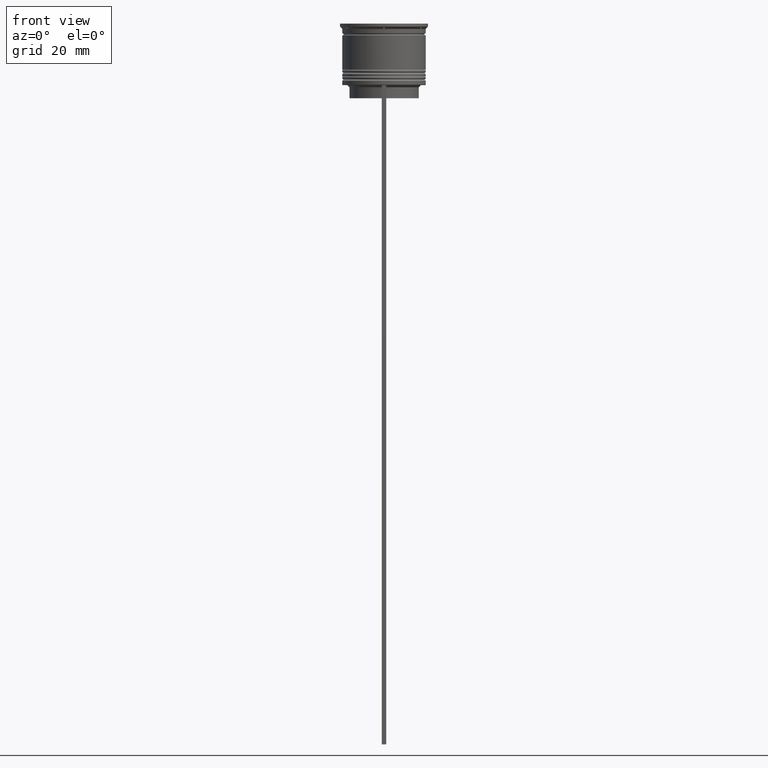
[diagram: clean part render]
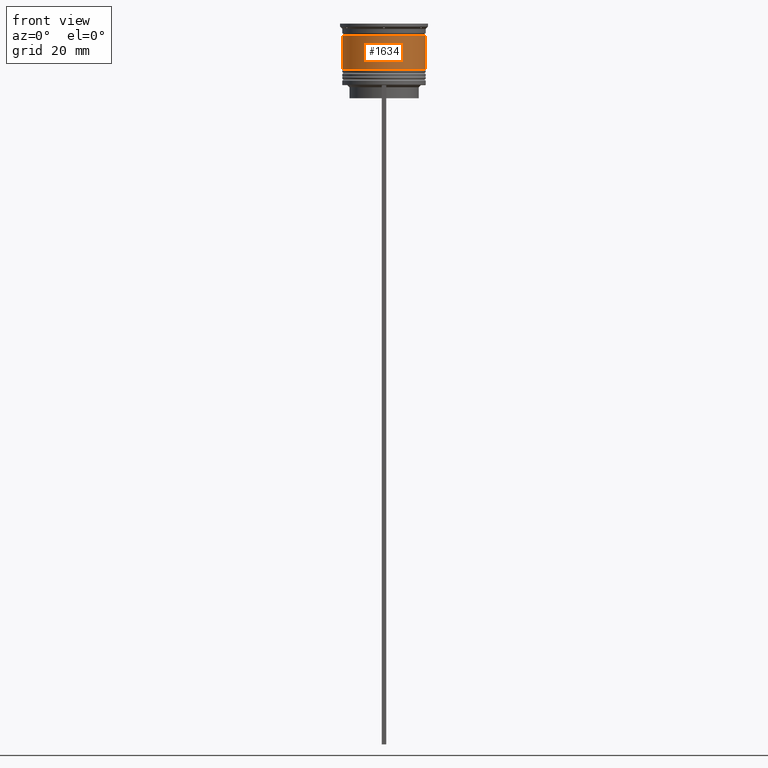
[diagram: same view with one face highlighted and labeled with its STEP entity id]
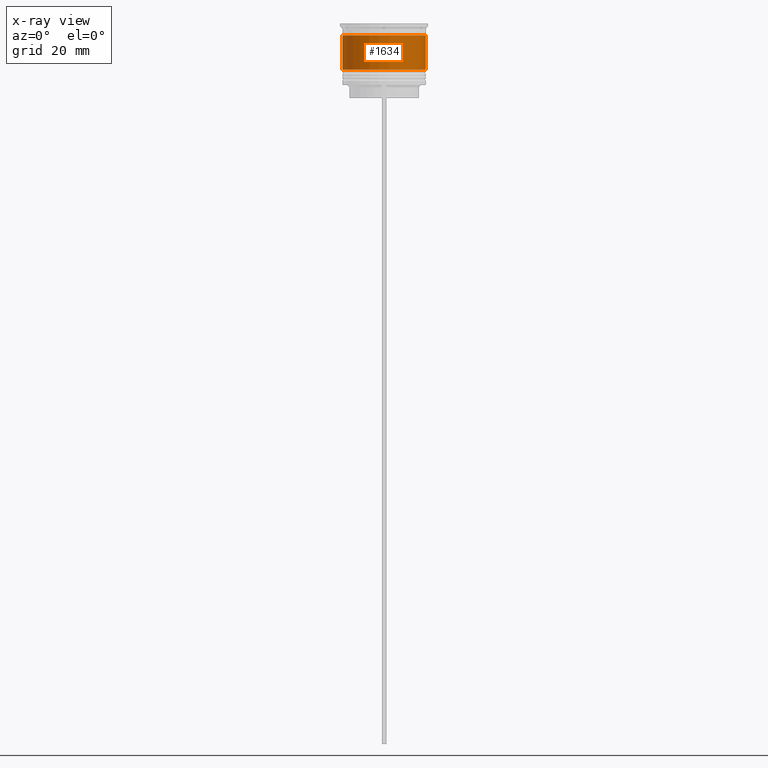
[diagram: x-ray of the same camera — body ghosted, the highlighted face saturated]
A machine part, front view. The second image highlights one B-rep face of the part: STEP entity #1634.
The next image is the same camera in x-ray: the body ghosted, the highlighted face saturated — about 0% of this face is hidden behind the body in this view.
In plain terms, the highlighted cylindrical surface (partial cylindrical patch) has radius 9.5 mm, axis along (-0, -0, 1).
Its self-contained STEP definition (entity closure, byte-faithful):
#133 = AXIS2_PLACEMENT_3D ( 'NONE', #1138, #517, #933 ) ;
#152 = DIRECTION ( 'NONE',  ( -0.000000000000000000, -0.000000000000000000, 1.000000000000000000 ) ) ;
#211 = CARTESIAN_POINT ( 'NONE',  ( 0.000000000000000000, 0.000000000000000000, 0.000000000000000000 ) ) ;
#324 = CARTESIAN_POINT ( 'NONE',  ( 0.000000000000000000, 0.000000000000000000, -2.700000000000001066 ) ) ;
#408 = VERTEX_POINT ( 'NONE', #1107 ) ;
#451 = VECTOR ( 'NONE', #738, 1000.000000000000000 ) ;
#517 = DIRECTION ( 'NONE',  ( -0.000000000000000000, -0.000000000000000000, 1.000000000000000000 ) ) ;
#528 = CARTESIAN_POINT ( 'NONE',  ( 9.500000000000001776, 0.000000000000000000, -10.50000000000000000 ) ) ;
#569 = AXIS2_PLACEMENT_3D ( 'NONE', #211, #1486, #1280 ) ;
#736 = EDGE_CURVE ( 'NONE', #408, #2333, #1173, .T. ) ;
#738 = DIRECTION ( 'NONE',  ( -0.000000000000000000, -0.000000000000000000, 1.000000000000000000 ) ) ;
#760 = CARTESIAN_POINT ( 'NONE',  ( 9.500000000000000000, 0.000000000000000000, 0.000000000000000000 ) ) ;
#763 = CARTESIAN_POINT ( 'NONE',  ( -9.500000000000000000, 1.163414459189985485E-15, 0.000000000000000000 ) ) ;
#826 = ORIENTED_EDGE ( 'NONE', *, *, #736, .F. ) ;
#933 = DIRECTION ( 'NONE',  ( 1.000000000000000000, 0.000000000000000000, 0.000000000000000000 ) ) ;
#957 = DIRECTION ( 'NONE',  ( -0.000000000000000000, -0.000000000000000000, 1.000000000000000000 ) ) ;
#1107 = CARTESIAN_POINT ( 'NONE',  ( -9.500000000000001776, 1.163414459189985682E-15, -10.50000000000000000 ) ) ;
#1138 = CARTESIAN_POINT ( 'NONE',  ( 0.000000000000000000, 0.000000000000000000, -10.50000000000000000 ) ) ;
#1173 = LINE ( 'NONE', #763, #2629 ) ;
#1234 = ORIENTED_EDGE ( 'NONE', *, *, #2375, .F. ) ;
#1280 = DIRECTION ( 'NONE',  ( 1.000000000000000000, 0.000000000000000000, 0.000000000000000000 ) ) ;
#1305 = CIRCLE ( 'NONE', #133, 9.500000000000001776 ) ;
#1433 = CIRCLE ( 'NONE', #2427, 9.499999999999998224 ) ;
#1486 = DIRECTION ( 'NONE',  ( -0.000000000000000000, -0.000000000000000000, 1.000000000000000000 ) ) ;
#1634 = ADVANCED_FACE ( 'NONE', ( #1665 ), #1867, .T. ) ;
#1662 = CARTESIAN_POINT ( 'NONE',  ( 9.499999999999998224, 0.000000000000000000, -2.700000000000001066 ) ) ;
#1665 = FACE_OUTER_BOUND ( 'NONE', #2064, .T. ) ;
#1762 = LINE ( 'NONE', #760, #451 ) ;
#1792 = EDGE_CURVE ( 'NONE', #408, #2398, #1305, .T. ) ;
#1867 = CYLINDRICAL_SURFACE ( 'NONE', #569, 9.500000000000000000 ) ;
#1977 = VERTEX_POINT ( 'NONE', #1662 ) ;
#2064 = EDGE_LOOP ( 'NONE', ( #826, #2591, #2669, #1234 ) ) ;
#2333 = VERTEX_POINT ( 'NONE', #2340 ) ;
#2340 = CARTESIAN_POINT ( 'NONE',  ( -9.499999999999998224, 1.163414459189985485E-15, -2.700000000000001066 ) ) ;
#2374 = DIRECTION ( 'NONE',  ( 1.000000000000000000, 0.000000000000000000, 0.000000000000000000 ) ) ;
#2375 = EDGE_CURVE ( 'NONE', #2333, #1977, #1433, .T. ) ;
#2398 = VERTEX_POINT ( 'NONE', #528 ) ;
#2427 = AXIS2_PLACEMENT_3D ( 'NONE', #324, #152, #2374 ) ;
#2483 = EDGE_CURVE ( 'NONE', #2398, #1977, #1762, .T. ) ;
#2591 = ORIENTED_EDGE ( 'NONE', *, *, #1792, .T. ) ;
#2629 = VECTOR ( 'NONE', #957, 1000.000000000000000 ) ;
#2669 = ORIENTED_EDGE ( 'NONE', *, *, #2483, .T. ) ;